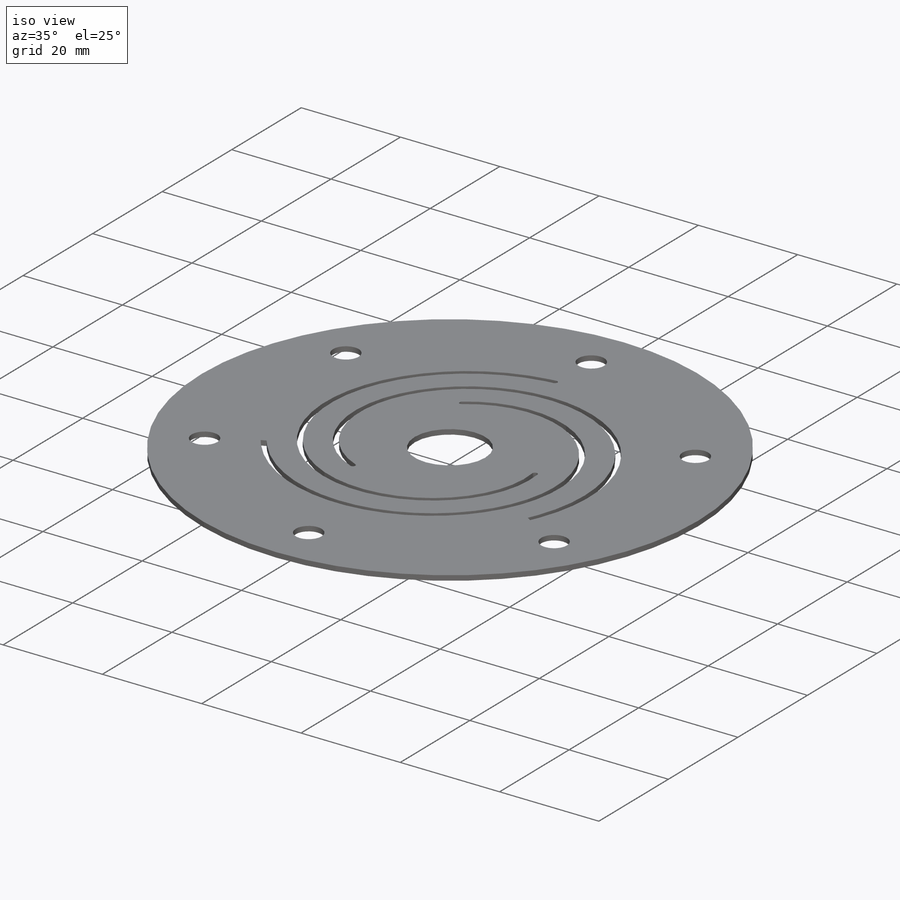
[diagram: iso view]
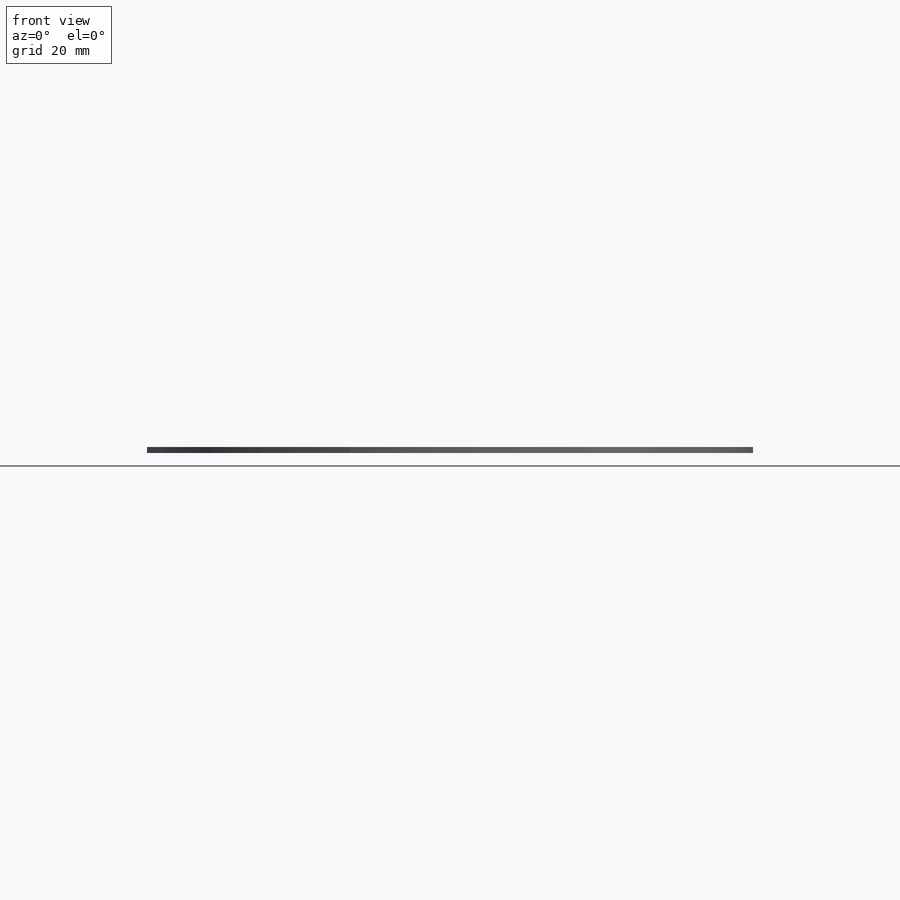
[diagram: front view]
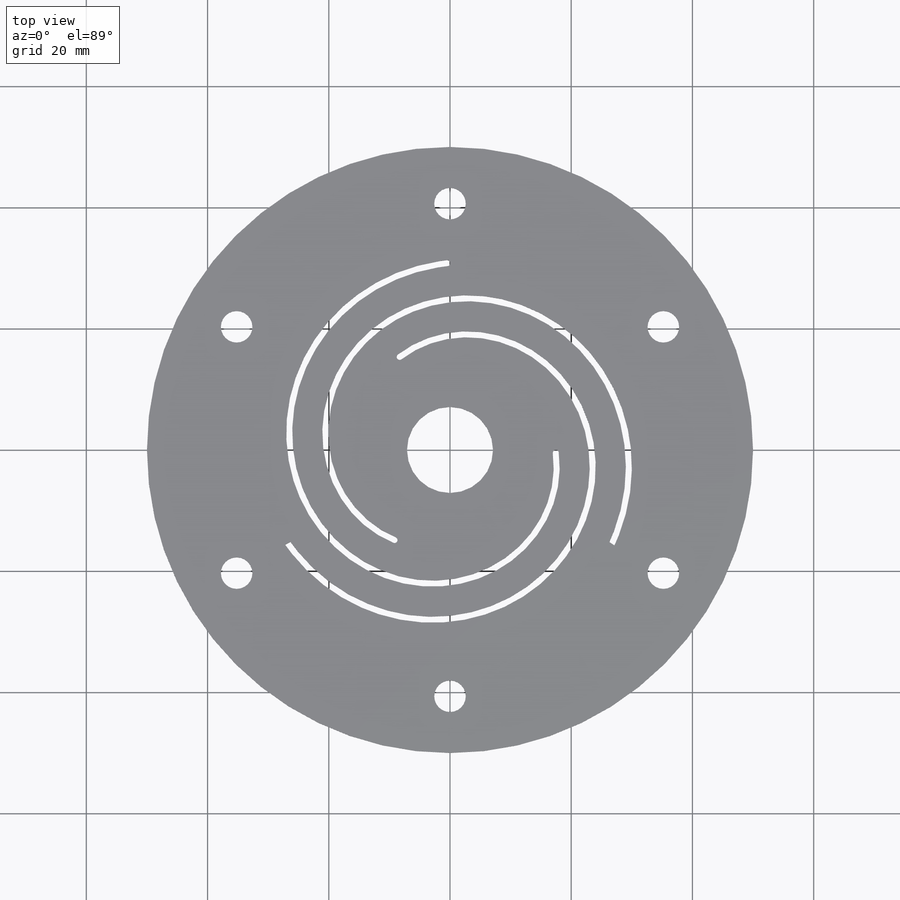
[diagram: top view]
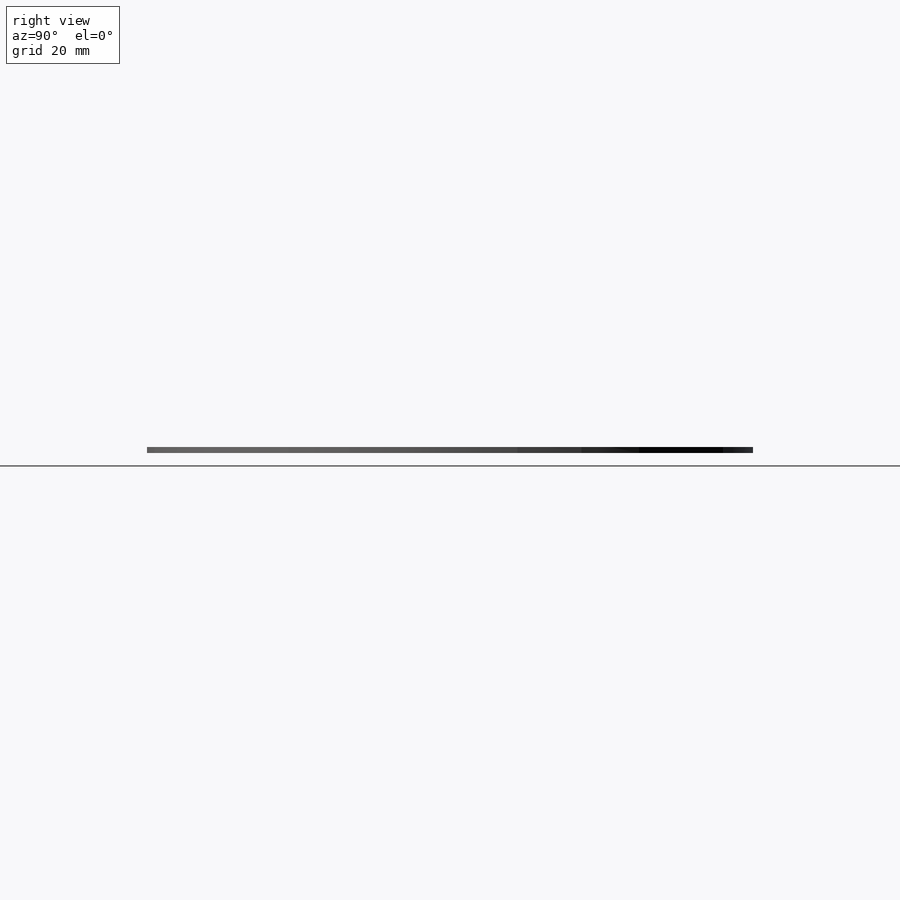
[diagram: right view]
SOLIDWORKS PART (.sldprt)
format: sldprt  version: not decoded by parser v0  size: 304,640 bytes
history: native  units: mm
features: sketch x6, plane x4, pattern_circular x2, fillet x2, material x1, extrude x1, cut_extrude x1, hole x1, helix x1, sweep x1 (+9 scaffold rows collapsed)
feature tree (29):
  scaffold x9  (default folders/planes/origin — collapsed)
  material  "Material <nicht festgelegt>"
  plane  "Vorne"
  plane  "Oben"
  plane  "Rechts"
  sketch  "Skizze1"  dims[c1.D1=~102.187107mm c2.D1=100.0mm]
  extrude  "Aufsatz-Linear austragen1"  Depth=1mm
  sketch  "Skizze2"
  cut_extrude  "Schnitt-Linear austragen1"  [1 undecoded]
  hole  "Ø5.2 (5.2) Durchmesser Bohrung1"  Diameter=5.2mm Depth=20.001mm
  sketch  "Skizze4"
  sketch  "Skizze5"  dims[hole-wizard template sketch: 46 standard entries collapsed; hole parameters kept: c15.Bohrerdurchmesser=5.2mm c15.Bohrungstiefe=20.001mm c15.D3=~14.816244mm c15.Spitzenwinkel=118.0deg]
  pattern_circular  "Kreismuster2"  Count=6 Angle=360deg
  sketch  "Skizze7"
  helix  "Spirale/Helix1"  Pitch=18mm
  plane  "Ebene1"
  sketch  "Skizze11"  dims[D1=1.0mm]
  sweep  "Schnitt-Austragung1"
  fillet  "Verrundung1"  [1 undecoded]
  fillet  "Verrundung2"  [1 undecoded]
  pattern_circular  "Kreismuster3"  Count=3 Angle=360deg
decode coverage: 8 of 15 modeling features carry decoded parameters
note: ~ marks probable driven/reference dimensions
note: 3 parameter values undecoded
summary: no parameter record found for 3 features
note: suppression state not decoded; provenance and decode notes live in map.json
